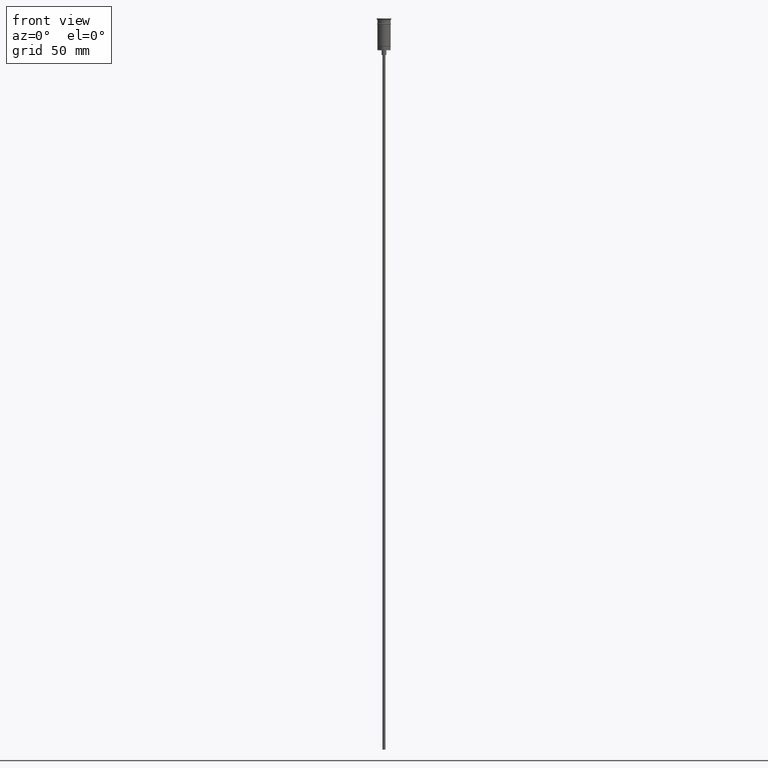
[diagram: clean part render]
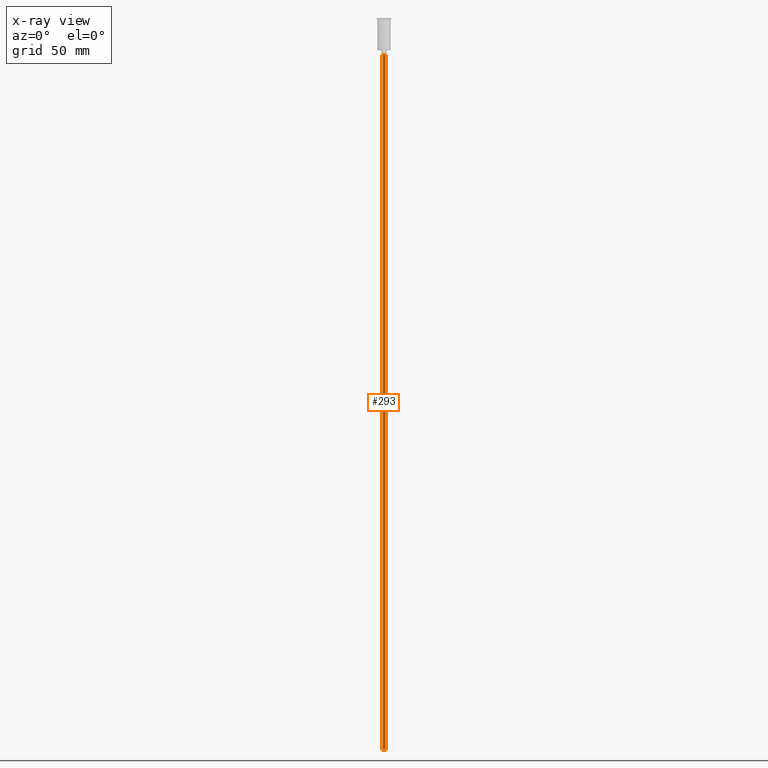
[diagram: x-ray — body ghosted, one internal face saturated and labeled with its STEP entity id]
A machine part, front view, then the same camera in x-ray: the body is ghosted and one INTERNAL B-rep face — a face not visible from any outside direction — is saturated and labeled: STEP entity #293.
In plain terms, the highlighted cylindrical surface (edge-blend (fillet) strip) has radius 1 mm, axis along (-0, -0, 1).
Its self-contained STEP definition (entity closure, byte-faithful):
#69 = VECTOR ( 'NONE', #1012, 1000.000000000000000 ) ;
#71 = DIRECTION ( 'NONE',  ( -1.000000000000000000, 0.000000000000000000, 0.000000000000000000 ) ) ;
#74 = EDGE_LOOP ( 'NONE', ( #243, #748, #420, #451 ) ) ;
#185 = EDGE_CURVE ( 'NONE', #1257, #908, #304, .T. ) ;
#217 = FACE_OUTER_BOUND ( 'NONE', #74, .T. ) ;
#243 = ORIENTED_EDGE ( 'NONE', *, *, #1137, .F. ) ;
#272 = LINE ( 'NONE', #913, #69 ) ;
#280 = CIRCLE ( 'NONE', #1368, 0.9999999999999997780 ) ;
#289 = DIRECTION ( 'NONE',  ( 0.000000000000000000, 0.000000000000000000, -1.000000000000000000 ) ) ;
#293 = ADVANCED_FACE ( 'NONE', ( #217 ), #1082, .T. ) ;
#295 = CARTESIAN_POINT ( 'NONE',  ( -0.9999999999999997780, 1.224646799147352961E-16, -470.5000000000000568 ) ) ;
#304 = LINE ( 'NONE', #295, #973 ) ;
#320 = CARTESIAN_POINT ( 'NONE',  ( 0.9999999999999997780, 0.000000000000000000, -470.5000000000000568 ) ) ;
#420 = ORIENTED_EDGE ( 'NONE', *, *, #1406, .T. ) ;
#432 = DIRECTION ( 'NONE',  ( -0.000000000000000000, -0.000000000000000000, 1.000000000000000000 ) ) ;
#436 = DIRECTION ( 'NONE',  ( 0.000000000000000000, 0.000000000000000000, -1.000000000000000000 ) ) ;
#441 = DIRECTION ( 'NONE',  ( -0.000000000000000000, -0.000000000000000000, 1.000000000000000000 ) ) ;
#451 = ORIENTED_EDGE ( 'NONE', *, *, #1374, .F. ) ;
#633 = DIRECTION ( 'NONE',  ( -1.000000000000000000, 0.000000000000000000, 0.000000000000000000 ) ) ;
#640 = CARTESIAN_POINT ( 'NONE',  ( 0.000000000000000000, 0.000000000000000000, -23.49999999999999645 ) ) ;
#642 = VERTEX_POINT ( 'NONE', #1079 ) ;
#748 = ORIENTED_EDGE ( 'NONE', *, *, #185, .T. ) ;
#825 = DIRECTION ( 'NONE',  ( 1.000000000000000000, 0.000000000000000000, 0.000000000000000000 ) ) ;
#908 = VERTEX_POINT ( 'NONE', #1490 ) ;
#913 = CARTESIAN_POINT ( 'NONE',  ( 0.9999999999999997780, 0.000000000000000000, -470.5000000000000568 ) ) ;
#950 = CIRCLE ( 'NONE', #1465, 0.9999999999999997780 ) ;
#960 = CARTESIAN_POINT ( 'NONE',  ( -0.9999999999999997780, 1.224646799147352961E-16, -470.5000000000000568 ) ) ;
#973 = VECTOR ( 'NONE', #432, 1000.000000000000000 ) ;
#1012 = DIRECTION ( 'NONE',  ( -0.000000000000000000, -0.000000000000000000, 1.000000000000000000 ) ) ;
#1079 = CARTESIAN_POINT ( 'NONE',  ( 0.9999999999999997780, 0.000000000000000000, -23.49999999999999645 ) ) ;
#1082 = CYLINDRICAL_SURFACE ( 'NONE', #1516, 0.9999999999999997780 ) ;
#1137 = EDGE_CURVE ( 'NONE', #1257, #1580, #950, .T. ) ;
#1197 = CARTESIAN_POINT ( 'NONE',  ( 0.000000000000000000, 0.000000000000000000, -470.5000000000000568 ) ) ;
#1257 = VERTEX_POINT ( 'NONE', #960 ) ;
#1320 = CARTESIAN_POINT ( 'NONE',  ( 0.000000000000000000, 0.000000000000000000, -470.5000000000000568 ) ) ;
#1368 = AXIS2_PLACEMENT_3D ( 'NONE', #640, #289, #633 ) ;
#1374 = EDGE_CURVE ( 'NONE', #1580, #642, #272, .T. ) ;
#1406 = EDGE_CURVE ( 'NONE', #908, #642, #280, .T. ) ;
#1465 = AXIS2_PLACEMENT_3D ( 'NONE', #1320, #436, #71 ) ;
#1490 = CARTESIAN_POINT ( 'NONE',  ( -0.9999999999999997780, 1.224646799147352961E-16, -23.49999999999999645 ) ) ;
#1516 = AXIS2_PLACEMENT_3D ( 'NONE', #1197, #441, #825 ) ;
#1580 = VERTEX_POINT ( 'NONE', #320 ) ;